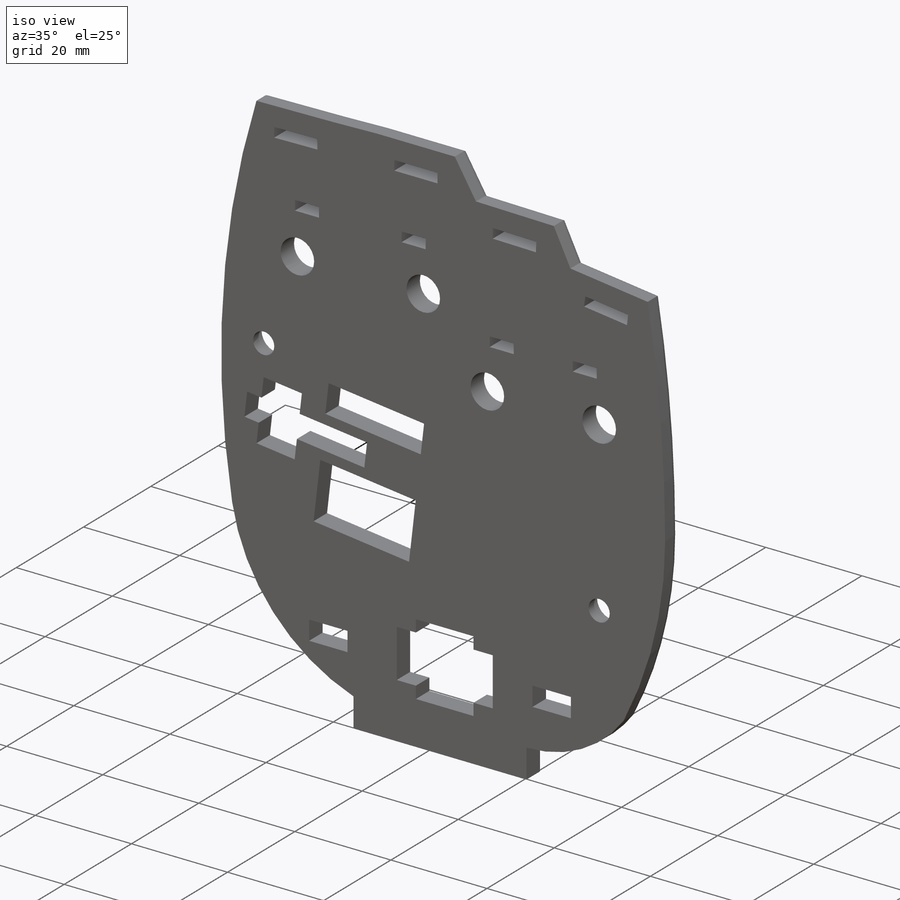
[diagram: iso view]
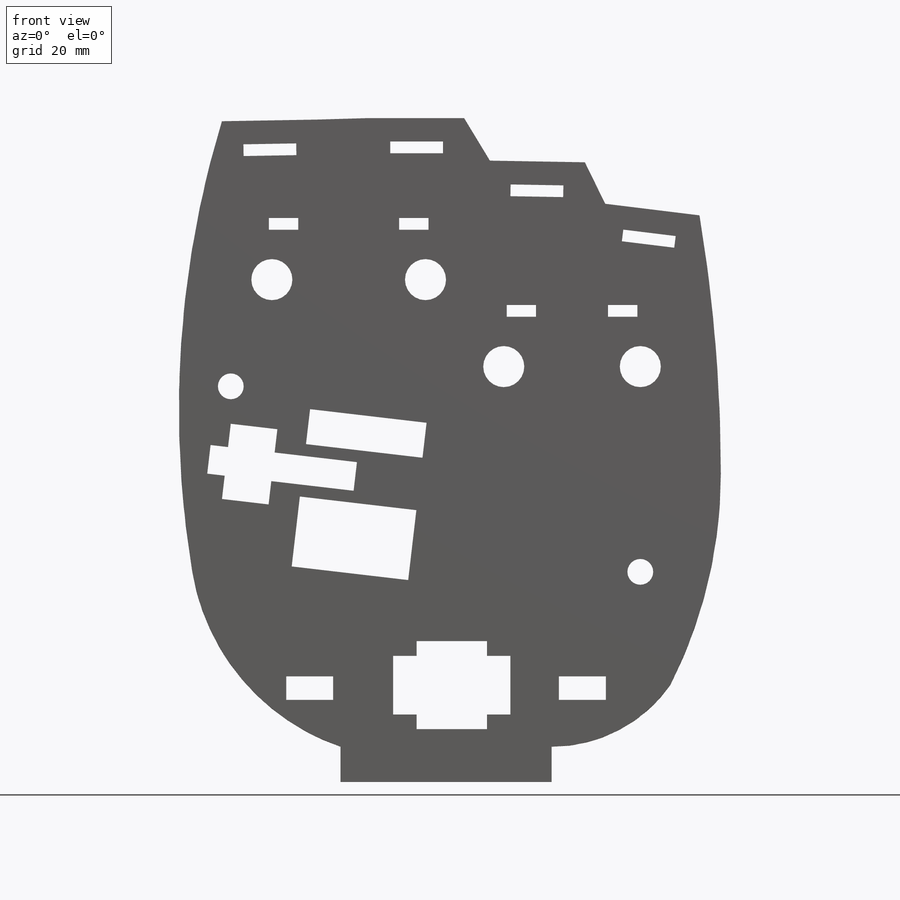
[diagram: front view]
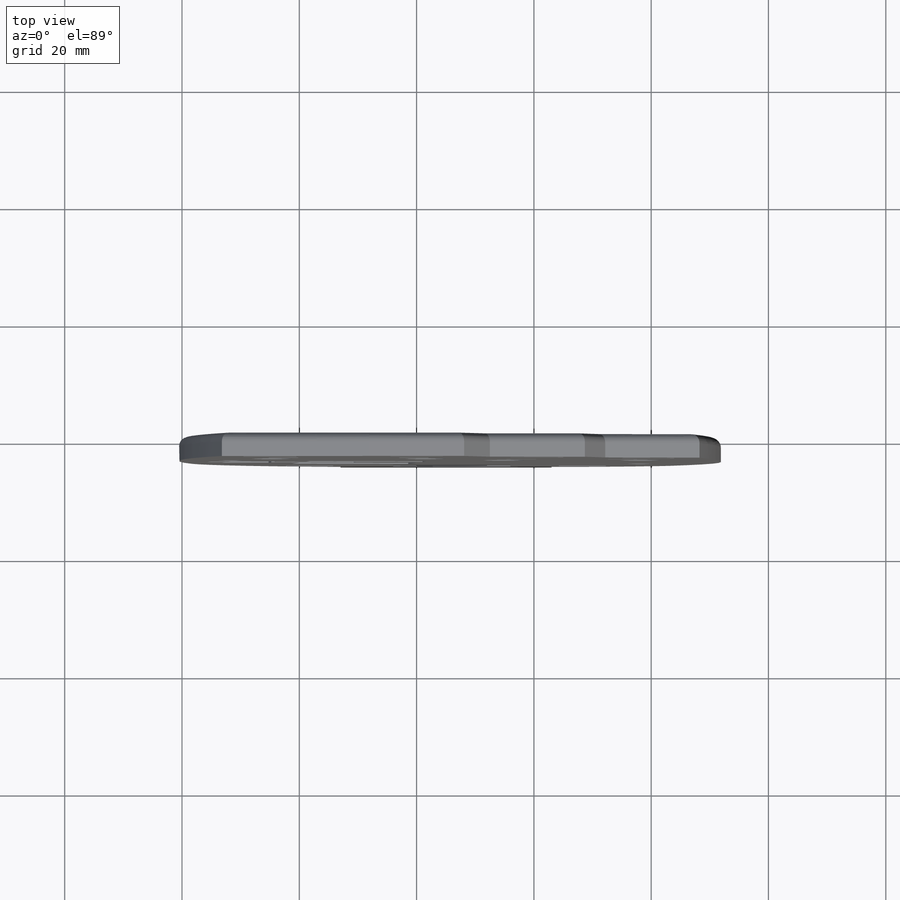
[diagram: top view]
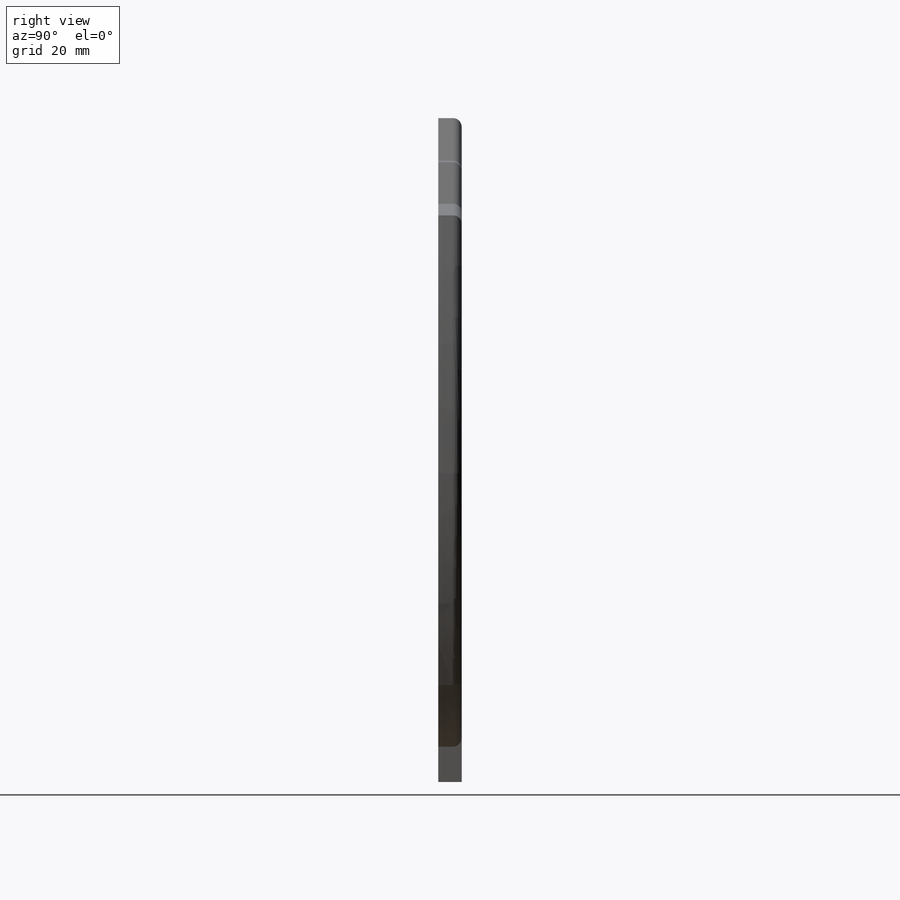
[diagram: right view]
SOLIDWORKS PART (.sldprt)
format: sldprt  version: not decoded by parser v0  size: 583,680 bytes
history: native  units: mm
features: sketch x3, cut_extrude x2, material x1, extrude x1, fillet x1 (+13 scaffold rows collapsed)
feature tree (21):
  scaffold x13  (default folders/planes/origin — collapsed)
  material  "Material <not specified>"
  sketch  "Sketch1"  dims[c1.D1=~209.776235mm c1.D4=~60.892958mm c1.D5=4.0mm c1.D6=4.0mm c1.D15=~67.890983mm c1.D16=~63.032848mm c1.D21=1.0mm c1.D22=1.0mm c1.D23=1.0mm c1.D24=1.0mm c1.D27=1.0mm c1.D28=1.0mm c1.D29=1.0mm c1.D30=1.0mm c1.D39=1.0mm c1.D40=1.0mm c1.D41=1.0mm c1.D42=1.0mm c1.D43=1.0mm c1.D44=1.0mm c1.D47=1.0mm c1.D48=1.0mm c2.D21=4.0mm c2.D22=7.0mm c2.D23=7.0mm c2.D24=7.0mm c2.D27=7.0mm c2.D29=6.0mm c2.D30=6.0mm c2.D39=2.0mm c2.D40=2.0mm c2.D42=6.0mm c2.D43=6.0mm c2.D44=2.0mm c2.D28=1.5mm c2.D41=~6.031354mm c2.D64=1.0mm c2.D65=1.0mm c2.D66=1.0mm c2.D68=4.0mm c2.D70=7.0mm c2.D71=2.0mm c2.D72=1.5mm c2.D73=4.0mm c2.D74=2.5mm c2.D61=2.5mm c3.D21=~3.810126mm c3.D42=4.0mm c3.D62=4.0mm c3.D63=2.0mm c3.D64=1.5mm c3.D7=2.5mm c4.D21=~491.646297mm c4.D41=4.0mm c4.D29=4.0mm c4.D39=4.0mm c4.D53=4.0mm c4.D1=7.0mm c4.D2=4.4mm c4.D3=2.5mm c4.D4=~938.698814mm c4.D5=~106.147601mm c4.D6=~38.571962mm c4.D7=~53.031069mm c4.D8=~16.88995mm c4.D63=~110.263658mm c4.D47=~114.339258mm c5.D63=~938.698814mm c5.D14=~47.104403mm c5.D47=~114.339258mm c5.D64=~222.787435mm c5.D66=~137.790897mm c5.D55=~36.096364mm c5.D31=4.3mm c5.D1=2.0mm c5.D2=3.0mm c5.D3=5.0mm c5.D4=2.0mm c6.D2=8.1mm c6.D3=8.1mm c6.D7=~53.983596mm c6.D8=~16.197533mm c6.D9=16.2mm c6.D10=~16.197533mm c6.D11=16.2mm c6.D12=~5.946522mm c6.D13=~7.00481mm c6.D14=~6.204145mm c6.D17=5.0mm c6.D18=2.0mm c6.D19=~8.998629mm c6.D20=~1.999695mm c6.D25=9.0mm c6.D26=2.0mm c6.D31=5.0mm c6.D32=2.0mm c6.D33=9.0mm c6.D34=~1.999695mm c7.D19=9.0mm c7.D35=5.0mm c7.D36=2.0mm c7.D37=2.0mm c7.D38=5.0mm c7.D45=2.0mm c7.D46=9.0mm c7.D49=20.0mm c7.D50=6.0mm c7.D51=20.0mm c7.D52=12.0mm c7.D53=4.0mm c7.D54=40.0mm c7.D55=4.0mm c7.D56=82.15mm c7.D28=~15.291669mm c7.D41=~22.200381mm c8.D28=5.0mm c8.D29=6.0mm c8.D30=6.0mm c8.D39=5.0mm c8.D40=6.0mm c8.D41=~30.104139mm c8.D42=~15.293363mm c9.D41=~36.678065mm c9.D42=5.0mm c9.D43=4.0mm c10.D41=~11.723568mm c10.D42=~45.678065mm c10.D43=10.0mm c10.D44=4.0mm c10.D47=4.0mm c10.D48=4.0mm c10.D50=10.0mm c10.D54=4.0mm c10.D56=~12.260028mm c10.D57=~45.678065mm c11.D41=8.0mm c11.D42=4.0mm c11.D56=~11.723568mm c11.D57=~12.260028mm c11.D58=6.0mm c11.D44=~17.356406mm c12.D58=~10.321658mm c12.D59=6.0mm c12.D60=30.0mm c12.D61=~16.197533mm c12.D62=2.0mm c12.D63=~1.999695mm c12.D67=9.0mm c12.D69=2.0mm c12.D8=16.2mm c13.D62=5.0mm c13.D21=~19.421473mm c13.D43=~73.40507mm c13.D28=12.0mm c13.D29=6.0mm c13.D39=4.0mm c13.D40=8.0mm c13.D44=4.0mm c13.D47=5.0mm c13.D15=5.0mm c13.D6=6.0mm c14.D15=2.0mm c14.D6=4.0mm c15.D15=8.0mm c15.D16=~19.294164mm c15.D21=35.0mm c15.D41=20.0mm c15.D42=12.0mm c15.D43=4.0mm c15.D48=10.0mm c15.D50=36.0mm c15.D52=6.0mm c15.D47=14.1315mm c15.D54=25.1315mm c15.D44=~1.014346mm c15.D56=~11.021359mm c15.D9=~0.064992mm c15.D10=~1.005749mm c15.D11=~1.521421mm c15.D12=~1.632919mm c15.D13=~2.021421mm c15.D14=~2.540447mm c16.D15=~4.021421mm c16.D16=~7.621421mm c16.D17=~9.764299mm c16.D18=12.0mm c16.D19=~13.259036mm c16.D20=~13.293941mm c16.D21=~13.996461mm c16.D22=~14.863065mm c16.D23=~15.363065mm c16.D24=16.0mm c16.D25=~20.079992mm c16.D26=~20.363065mm c16.D27=~22.257665mm c16.D28=~22.29257mm c16.D29=~23.021359mm c16.D30=~25.961831mm c16.D31=~27.224346mm c16.D32=~29.481128mm c16.D33=~29.93103mm c16.D34=~32.647342mm c16.D35=~35.147342mm c16.D36=~37.647342mm c16.D37=~38.147342mm c16.D38=~38.250458mm c16.D39=~38.70036mm c16.D40=~43.070337mm c16.D41=~903.026872mm c16.D42=~1.189349mm c16.D43=~2.978579mm c16.D44=4.0mm c16.D45=~4.978579mm c16.D46=~8.578579mm c16.D47=~9.150012mm c16.D48=~9.662201mm c16.D49=~12.978641mm c16.D50=14.0mm c16.D51=~14.521337mm c16.D52=~18.257519mm c16.D53=~18.28436mm c16.D54=~18.319265mm c16.D55=~18.884689mm c16.D56=~19.825446mm c16.D57=~20.17896mm c16.D58=~21.079787mm c16.D59=~22.785984mm c16.D60=~23.204098mm c16.D61=~23.716288mm c16.D62=~24.134402mm c16.D63=~24.324508mm c16.D64=~24.67896mm c16.D65=~25.17896mm c16.D66=~27.282989mm c16.D67=~27.317894mm c16.D68=~30.74216mm c16.D69=~31.160274mm c16.D70=~31.672463mm c16.D71=~31.681502mm c16.D72=~32.090577mm c16.D73=~33.218869mm c16.D74=~34.143839mm c16.D75=~34.656029mm c16.D76=~35.670375mm c16.D77=~59.545831mm c16.D9=0.0mm c16.D10=~1.005749mm c16.D11=~1.521421mm c16.D12=~1.632919mm c16.D13=~2.021421mm c16.D14=~2.540447mm c17.D15=~4.021421mm c17.D16=~7.621421mm c17.D17=~9.764299mm c17.D18=12.0mm c17.D19=~13.259036mm c17.D20=~13.293941mm c17.D21=~13.996461mm c17.D22=~14.863065mm c17.D23=~15.363065mm c17.D24=16.0mm c17.D25=~20.079992mm c17.D26=~20.363065mm c17.D27=~22.257665mm c17.D28=~23.021359mm c17.D29=~25.961831mm c17.D30=~27.224346mm c17.D31=~29.481128mm c17.D32=~29.93103mm c17.D33=~32.647342mm c17.D34=~35.147342mm c17.D35=~38.147342mm c17.D36=~43.070337mm c17.D37=~903.026872mm c17.D38=~1.189349mm c17.D39=~8.578579mm c17.D40=9.6615mm c17.D41=10.203mm c17.D42=~12.978641mm c17.D43=14.0mm c17.D44=~14.521337mm c17.D45=~18.257519mm c17.D46=~18.28436mm c17.D47=~18.319265mm c17.D48=~20.17896mm c17.D49=~22.785984mm c17.D50=~24.67896mm c17.D51=~30.74216mm c17.D52=~31.681502mm c17.D53=~33.218869mm c17.D54=~34.143839mm c17.D55=~35.670375mm c17.D56=9.0mm c17.D57=~11.090569mm c17.D58=~11.697011mm c17.D59=~11.821617mm c17.D60=~13.412115mm c17.D61=~18.677986mm c17.D62=~20.934263mm c17.D63=~21.567256mm c17.D64=~22.403484mm c17.D65=~23.024832mm c17.D66=24.0682mm c17.D67=~25.545344mm c17.D68=~26.381571mm c17.D69=~26.695157mm c17.D70=~27.657852mm c17.D71=~28.941357mm c17.D72=~29.88496mm c17.D73=~30.418501mm c17.D74=~31.254729mm c17.D75=~31.568314mm c17.D76=~31.975529mm c17.D77=~34.396589mm c17.D78=~35.232816mm c17.D79=~35.852092mm c17.D80=~37.942661mm c17.D81=~38.963705mm c17.D82=~43.456406mm c17.D83=~46.821617mm c17.D84=~55.321617mm c17.D85=~55.399849mm c17.D86=~57.321617mm c17.D87=~57.399849mm c17.D88=~60.926256mm c17.D89=~61.651219mm c17.D90=~62.874996mm c17.D91=~62.950815mm c17.D92=~64.899555mm c17.D93=~66.115781mm c17.D94=~69.48395mm c17.D95=~69.622023mm c17.D96=~69.779094mm c17.D97=~70.151219mm c17.D98=~71.621718mm c17.D99=~71.77879mm c17.D100=~72.151219mm c17.D101=~75.55828mm c17.D102=~75.841009mm c17.D103=~76.071769mm c17.D104=~76.228841mm c17.D105=76.51mm c17.D106=~78.071464mm c17.D107=~78.228536mm c17.D108=78.51mm c17.D109=~82.015701mm c17.D110=~82.298431mm c17.D111=82.51mm c17.D112=~1.368125mm c17.D113=~8.999993mm c17.D114=~9.124359mm c17.D115=12.5mm c17.D116=15.0mm c17.D117=~17.999985mm c17.D118=~23.999985mm c18.D56=9.0mm c18.D57=~11.697011mm c18.D58=~11.821617mm c18.D59=~21.567256mm c18.D60=~43.456406mm c18.D61=~46.821617mm c18.D62=~55.321617mm c18.D63=~55.399849mm c18.D64=~60.926256mm c18.D65=~61.651219mm c18.D66=~69.622023mm c18.D67=~70.151219mm c18.D68=~75.55828mm c18.D69=~76.071769mm c18.D70=76.51mm c18.D71=82.51mm c18.D72=~9.124359mm c18.D73=12.5mm c18.D13=82.51mm c18.D15=23.845mm c18.D16=82.14mm c18.D17=19.57mm c18.D19=75.665mm c18.D20=38.19mm c18.D23=68.08mm c18.D26=8.1mm c19.D26=90.0deg c20.D26=16.2mm c20.D27=5.0mm c20.D29=~55.321617mm c20.D30=~32.647342mm c20.D31=~55.399849mm c20.D32=~15.363065mm c20.D33=~70.151219mm c20.D36=~2.978579mm c20.D39=~25.17896mm c20.D44=4.0mm c20.D46=4.0mm c20.D47=4.0mm c20.D48=4.0mm c20.D53=~9.000072mm c20.D62=9.0mm c21.D44=4.0mm c21.D46=4.0mm c21.D47=~4.053272mm c21.D48=4.0mm c21.D19=75.665mm c22.D44=4.0mm c22.D47=4.0mm c22.D62=2.0mm c22.D56=8.991mm c22.D59=21.571mm c22.D63=71.1mm c22.D21=18.0mm c23.D63=7.0deg c23.D47=68.85mm c23.D23=68.08mm c24.D47=353.0deg c24.D37=4.0mm c25.D47=~57.321617mm c25.D57=~72.151219mm c25.D63=2.5mm c25.D64=~75.247422mm c25.D56=4.5mm c25.D49=~25.128496mm c25.D51=~14.128496mm c25.D54=~12.907754mm c26.D51=8.0mm c26.D54=~14.128496mm c27.D51=4.0mm c27.D49=~19.988858mm c27.D45=20.0mm c28.D49=4.5mm c28.D51=~25.128496mm c28.D54=8.0mm c28.D56=14.13mm c28.D9=9.0mm c28.D12=6.0mm c28.D38=4.91mm c28.D8=12.0mm c28.D14=10.0mm c28.D18=2.5mm c28.D24=4.0mm c28.ThumbLinkLengthMCP=~17.761973mm c29.ThumbLinkLengthMCP=~17.992162mm c30.ThumbLinkLengthMCP=20.045mm c30.D25=4.0mm c30.D34=8.1mm c30.D44=35.0mm c30.D55=75.2mm c30.D54=~78.967202deg]
  extrude  "Boss-Extrude1"  Depth=4mm
  sketch  "Sketch2"  dims[c1.D1=4.0mm c1.D2=8.0mm c1.D3=12.0mm c1.D4=~5.021359mm c1.D5=~18.000001mm c1.D6=~14.000001mm c2.D5=~14.000001mm c2.D6=8.0mm c2.D3=19.25mm c2.D4=14.0mm]
  cut_extrude  "Cut-Extrude1"  [1 undecoded]
  fillet  "Fillet1"  Radius=1.5mm
  sketch  "Sketch3"  dims[D1=6.5mm]
  cut_extrude  "Cut-Extrude2"  Depth=2.4mm
decode coverage: 6 of 7 modeling features carry decoded parameters
note: ~ marks probable driven/reference dimensions
note: 1 parameter value undecoded
note: suppression state not decoded; provenance and decode notes live in map.json
